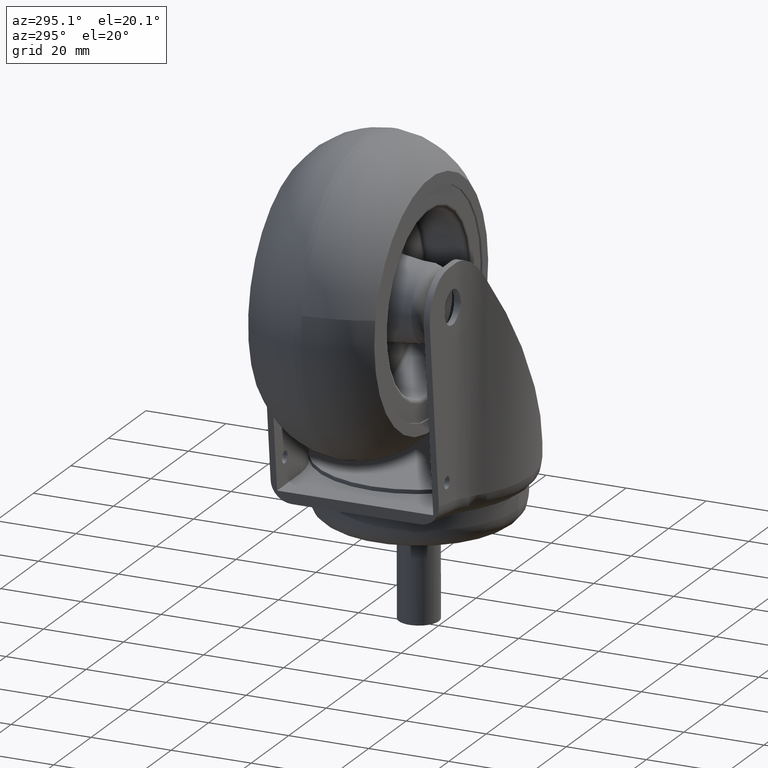
[diagram: clean part render]
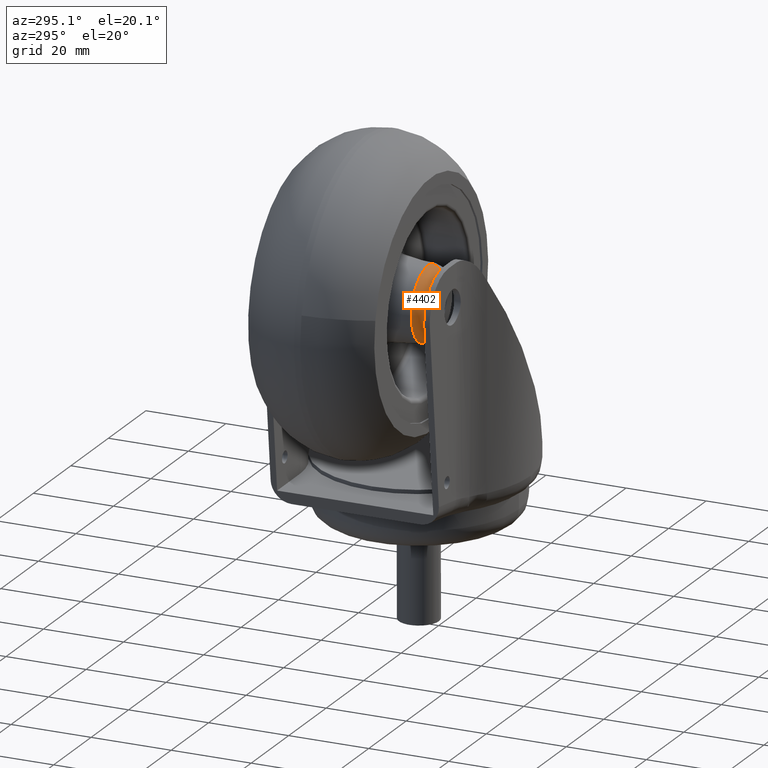
[diagram: same view with one face highlighted and labeled with its STEP entity id]
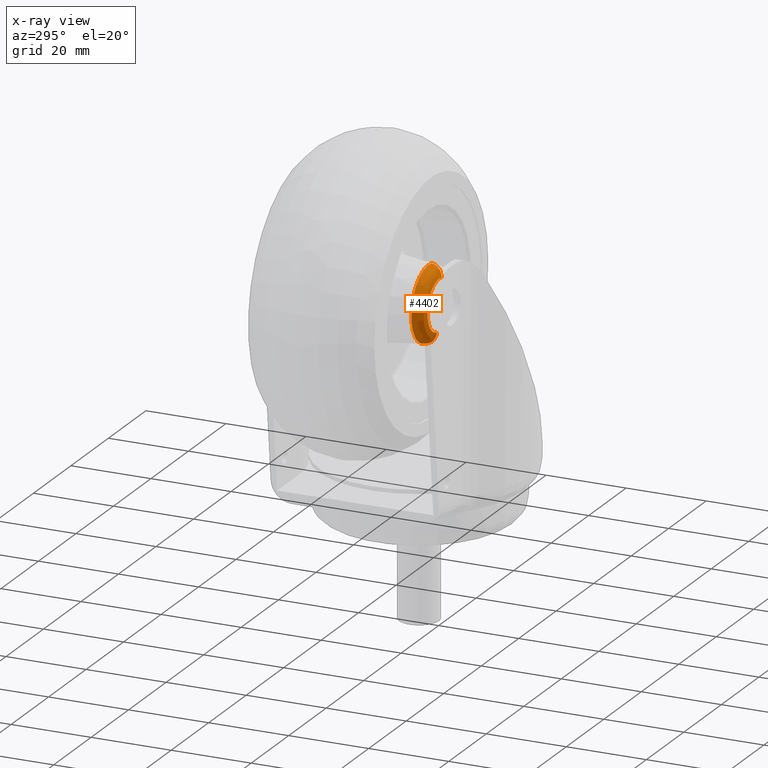
[diagram: x-ray of the same camera — body ghosted, the highlighted face saturated]
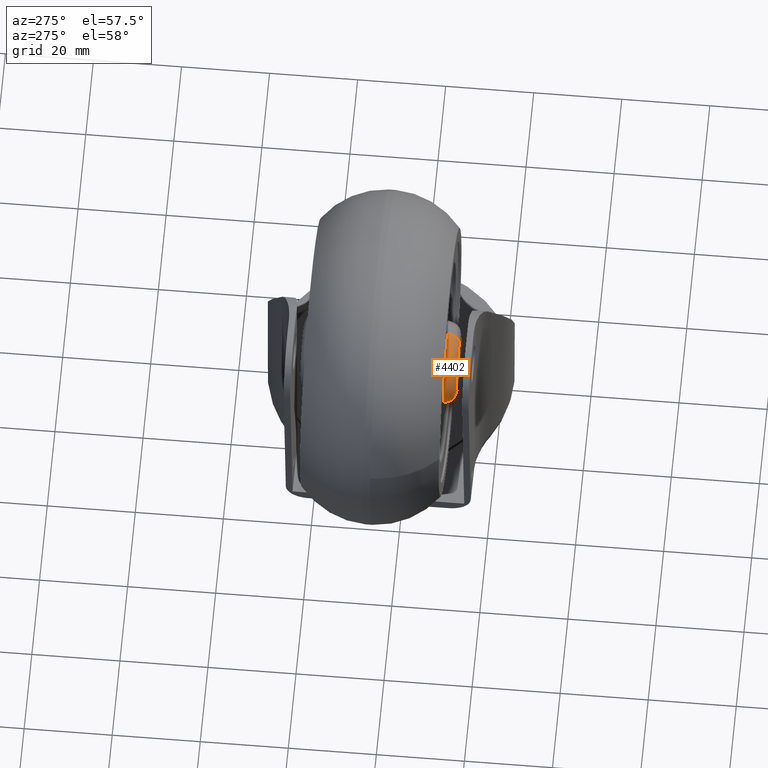
[diagram: same view with one face highlighted and labeled with its STEP entity id]
A machine part, auxiliary view. The second image highlights one B-rep face of the part: STEP entity #4402.
The next image is the same camera in x-ray: the body ghosted, the highlighted face saturated — about 0% of this face is hidden behind the body in this view.
A second angle (auxiliary view) of the same face is appended — the face is thin or edge-on in the first view.
In plain terms, the highlighted face is a freeform B-spline surface patch.
Its self-contained STEP definition (entity closure, byte-faithful):
#66 = VERTEX_POINT ( 'NONE', #1190 ) ;
#86 = VERTEX_POINT ( 'NONE', #1251 ) ;
#265 = ORIENTED_EDGE ( 'NONE', *, *, #4393, .T. ) ;
#269 = EDGE_CURVE ( 'NONE', #86, #66, #1944, .T. ) ;
#270 = ORIENTED_EDGE ( 'NONE', *, *, #269, .T. ) ;
#271 = ORIENTED_EDGE ( 'NONE', *, *, #272, .F. ) ;
#272 = EDGE_CURVE ( 'NONE', #86, #4384, #1967, .T. ) ;
#1190 = CARTESIAN_POINT ( 'NONE',  ( -9.287185781999996300, -2.857250467720554200E-009, 0.6804006289999916500 ) ) ;
#1251 = CARTESIAN_POINT ( 'NONE',  ( 9.287185781999998100, -4.169650546287601600E-010, 0.6804006289999916500 ) ) ;
#1940 = DIRECTION ( 'NONE',  ( 1.000000000000000000, 0.0000000000000000000, 1.237462380759161000E-015 ) ) ;
#1941 = DIRECTION ( 'NONE',  ( -0.0000000000000000000, -0.0000000000000000000, -1.000000000000000000 ) ) ;
#1942 = CARTESIAN_POINT ( 'NONE',  ( 0.0000000000000000000, 0.0000000000000000000, 0.6804006289999886500 ) ) ;
#1943 = AXIS2_PLACEMENT_3D ( 'NONE', #1942, #1941, #1940 ) ;
#1944 = CIRCLE ( 'NONE', #1943, 9.287185781999996300 ) ;
#1963 = CARTESIAN_POINT ( 'NONE',  ( 6.304258318812476800, 0.0000000000000000000, -2.000000000000000000 ) ) ;
#1964 = CARTESIAN_POINT ( 'NONE',  ( 7.916344786000001600, 0.0000000000000000000, -2.000000000000000000 ) ) ;
#1965 = CARTESIAN_POINT ( 'NONE',  ( 9.115445175000001400, 0.0000000000000000000, -0.9225117009999999100 ) ) ;
#1966 = CARTESIAN_POINT ( 'NONE',  ( 9.287185781999998100, -4.169650546287601600E-010, 0.6804006289999916500 ) ) ;
#1967 =( BOUNDED_CURVE ( )  B_SPLINE_CURVE ( 3, ( #1966, #1965, #1964, #1963 ),
 .UNSPECIFIED., .F., .F. ) 
 B_SPLINE_CURVE_WITH_KNOTS ( ( 4, 4 ),
 ( 0.0000000000000000000, 1.000000000000000000 ),
 .UNSPECIFIED. ) 
 CURVE ( )  GEOMETRIC_REPRESENTATION_ITEM ( )  RATIONAL_B_SPLINE_CURVE ( ( 1.000000000000000000, 0.8292126026081281200, 0.8292126026081281200, 1.000000000000000000 ) ) 
 REPRESENTATION_ITEM ( '' )  );
#3699 = CARTESIAN_POINT ( 'NONE',  ( 6.304258318812476800, 0.0000000000000000000, -2.000000000000000000 ) ) ;
#3700 = CARTESIAN_POINT ( 'NONE',  ( 6.304258320000016600, -12.60851664000003300, -1.999999999999998900 ) ) ;
#3701 = CARTESIAN_POINT ( 'NONE',  ( -6.304258320000016600, -12.60851664000003300, -1.999999999999998900 ) ) ;
#3702 = CARTESIAN_POINT ( 'NONE',  ( -6.304258318812476800, 0.0000000000000000000, -2.000000000000000000 ) ) ;
#3703 =( BOUNDED_CURVE ( )  B_SPLINE_CURVE ( 3, ( #3702, #3701, #3700, #3699 ),
 .UNSPECIFIED., .F., .T. ) 
 B_SPLINE_CURVE_WITH_KNOTS ( ( 4, 4 ),
 ( 0.0000000000000000000, 1.000000000000000000 ),
 .UNSPECIFIED. ) 
 CURVE ( )  GEOMETRIC_REPRESENTATION_ITEM ( )  RATIONAL_B_SPLINE_CURVE ( ( 0.9999999999999976700, 0.3333333333333323700, 0.3333333333333323700, 0.9999999999999976700 ) ) 
 REPRESENTATION_ITEM ( '' )  );
#3710 = CARTESIAN_POINT ( 'NONE',  ( -6.304258318812476800, 0.0000000000000000000, -2.000000000000000000 ) ) ;
#3718 = CARTESIAN_POINT ( 'NONE',  ( 6.304258318812476800, 0.0000000000000000000, -2.000000000000000000 ) ) ;
#3726 =( BOUNDED_SURFACE ( )  B_SPLINE_SURFACE ( 3, 3, ( 
 ( #3763, #3762, #3761, #3760 ),
 ( #3759, #3758, #3757, #3756 ),
 ( #3755, #3754, #3753, #3752 ),
 ( #3751, #3750, #3749, #3748 ) ),
 .UNSPECIFIED., .F., .F., .T. ) 
 B_SPLINE_SURFACE_WITH_KNOTS ( ( 4, 4 ),
 ( 4, 4 ),
 ( 0.0000000000000000000, 1.000000000000000000 ),
 ( 0.0000000000000000000, 1.000000000000000000 ),
 .UNSPECIFIED. ) 
 GEOMETRIC_REPRESENTATION_ITEM ( )  RATIONAL_B_SPLINE_SURFACE ( (
 ( 1.000000000000000000, 0.3333333333333330400, 0.3333333333333330400, 1.000000000000000000),
 ( 0.8292126026081281200, 0.2764042008693760600, 0.2764042008693760600, 0.8292126026081281200),
 ( 0.8292126026081281200, 0.2764042008693760600, 0.2764042008693760600, 0.8292126026081281200),
 ( 1.000000000000000000, 0.3333333333333330400, 0.3333333333333330400, 1.000000000000000000) ) ) 
 REPRESENTATION_ITEM ( '' )  SURFACE ( )  );
#3732 = FACE_OUTER_BOUND ( 'NONE', #4397, .T. ) ;
#3740 = CARTESIAN_POINT ( 'NONE',  ( -9.287185781999996300, -2.857250467720554200E-009, 0.6804006289999916500 ) ) ;
#3741 = CARTESIAN_POINT ( 'NONE',  ( -9.115445175000001400, 0.0000000000000000000, -0.9225117009999999100 ) ) ;
#3742 = CARTESIAN_POINT ( 'NONE',  ( -7.916344786000001600, 0.0000000000000000000, -2.000000000000000000 ) ) ;
#3743 = CARTESIAN_POINT ( 'NONE',  ( -6.304258318812476800, 0.0000000000000000000, -2.000000000000000000 ) ) ;
#3744 =( BOUNDED_CURVE ( )  B_SPLINE_CURVE ( 3, ( #3743, #3742, #3741, #3740 ),
 .UNSPECIFIED., .F., .T. ) 
 B_SPLINE_CURVE_WITH_KNOTS ( ( 4, 4 ),
 ( 0.0000000000000000000, 1.000000000000000000 ),
 .UNSPECIFIED. ) 
 CURVE ( )  GEOMETRIC_REPRESENTATION_ITEM ( )  RATIONAL_B_SPLINE_CURVE ( ( 1.000000000000000000, 0.8292126026081281200, 0.8292126026081281200, 1.000000000000000000 ) ) 
 REPRESENTATION_ITEM ( '' )  );
#3748 = CARTESIAN_POINT ( 'NONE',  ( -9.287185781999998100, 0.0000000000000000000, 0.6804006290000002000 ) ) ;
#3749 = CARTESIAN_POINT ( 'NONE',  ( -9.287185781999998100, -18.57437156300000300, 0.6804006290000002000 ) ) ;
#3750 = CARTESIAN_POINT ( 'NONE',  ( 9.287185781999998100, -18.57437156300000300, 0.6804006290000002000 ) ) ;
#3751 = CARTESIAN_POINT ( 'NONE',  ( 9.287185781999998100, 0.0000000000000000000, 0.6804006290000002000 ) ) ;
#3752 = CARTESIAN_POINT ( 'NONE',  ( -9.115445175000001400, 0.0000000000000000000, -0.9225117009999999100 ) ) ;
#3753 = CARTESIAN_POINT ( 'NONE',  ( -9.115445175000003200, -18.23089035000000600, -0.9225117009999998000 ) ) ;
#3754 = CARTESIAN_POINT ( 'NONE',  ( 9.115445175000003200, -18.23089035000000600, -0.9225117009999998000 ) ) ;
#3755 = CARTESIAN_POINT ( 'NONE',  ( 9.115445175000001400, 0.0000000000000000000, -0.9225117009999999100 ) ) ;
#3756 = CARTESIAN_POINT ( 'NONE',  ( -7.916344786000001600, 0.0000000000000000000, -2.000000000000000400 ) ) ;
#3757 = CARTESIAN_POINT ( 'NONE',  ( -7.916344786000002500, -15.83268957300000300, -1.999999999999999600 ) ) ;
#3758 = CARTESIAN_POINT ( 'NONE',  ( 7.916344786000002500, -15.83268957300000300, -1.999999999999999600 ) ) ;
#3759 = CARTESIAN_POINT ( 'NONE',  ( 7.916344786000001600, 0.0000000000000000000, -2.000000000000000400 ) ) ;
#3760 = CARTESIAN_POINT ( 'NONE',  ( -6.304258319999999700, 0.0000000000000000000, -2.000000000000000000 ) ) ;
#3761 = CARTESIAN_POINT ( 'NONE',  ( -6.304258319999999700, -12.60851663999999900, -2.000000000000000000 ) ) ;
#3762 = CARTESIAN_POINT ( 'NONE',  ( 6.304258319999999700, -12.60851663999999900, -2.000000000000000000 ) ) ;
#3763 = CARTESIAN_POINT ( 'NONE',  ( 6.304258319999999700, 0.0000000000000000000, -2.000000000000000000 ) ) ;
#4384 = VERTEX_POINT ( 'NONE', #3718 ) ;
#4392 = VERTEX_POINT ( 'NONE', #3710 ) ;
#4393 = EDGE_CURVE ( 'NONE', #4392, #4384, #3703, .T. ) ;
#4397 = EDGE_LOOP ( 'NONE', ( #4408, #265, #271, #270 ) ) ;
#4402 = ADVANCED_FACE ( 'NONE', ( #3732 ), #3726, .T. ) ;
#4408 = ORIENTED_EDGE ( 'NONE', *, *, #4409, .F. ) ;
#4409 = EDGE_CURVE ( 'NONE', #4392, #66, #3744, .T. ) ;